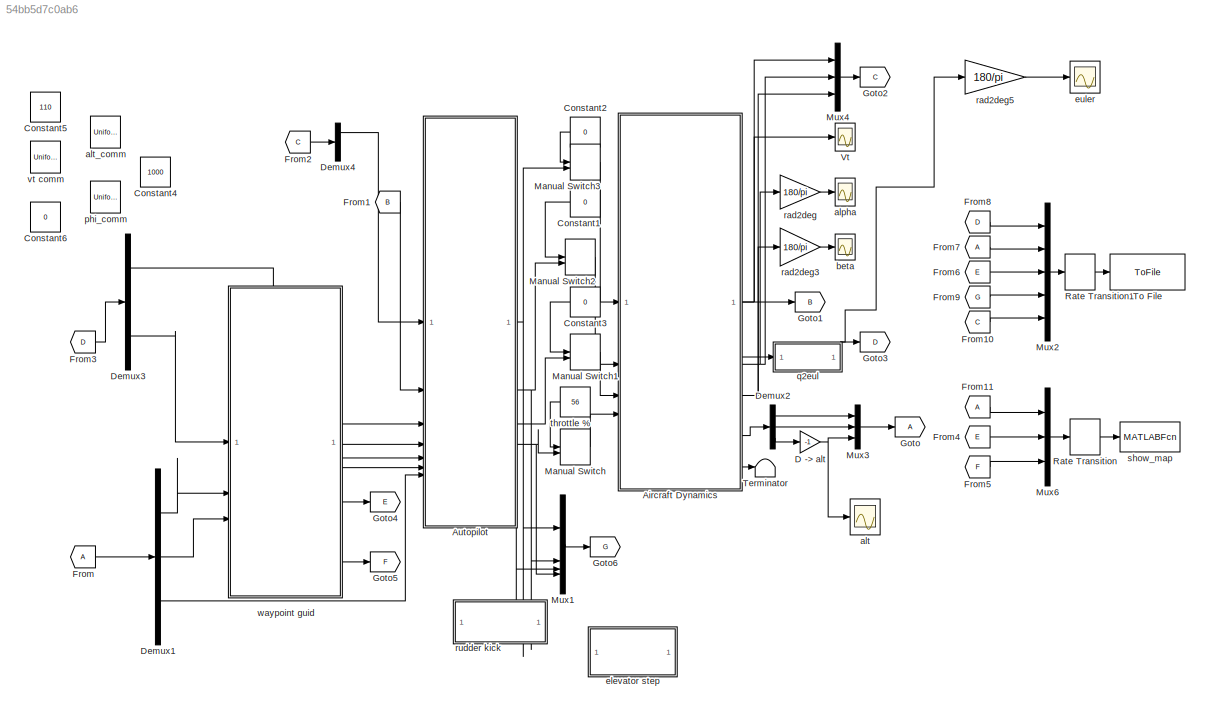
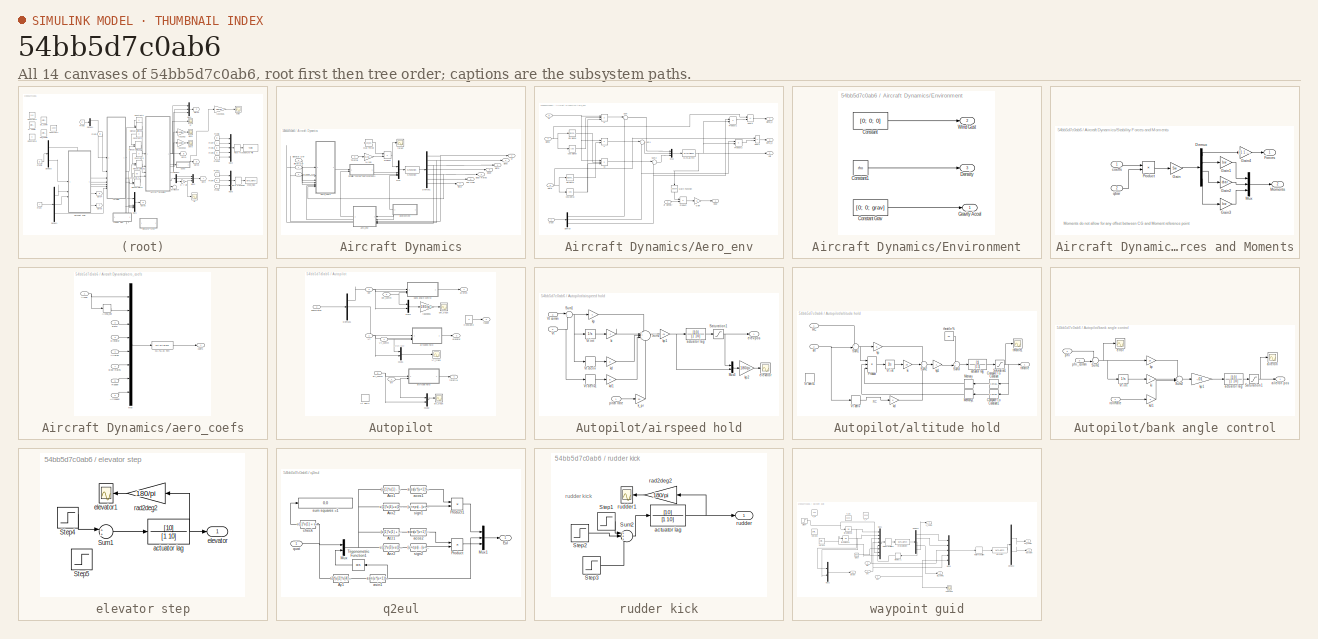
[diagram: thumbnail index - all 14 canvases of the model, root first then tree order]
MODEL slx_54bb5d7c0ab6
KIND model
CONFIG AbsTol = auto
CONFIG EnableMultiTasking = on
CONFIG FixedStep = auto
CONFIG MaxStep = auto
CONFIG MinStep = auto
CONFIG RelTol = 1e-3
CONFIG SampleTimeConstraint = Unconstrained
CONFIG SolverName = ode45
CONFIG StartTime = 0.0
CONFIG StopTime = 500
WORKSPACE source: MATLAB code (in-file)
WORKSPACE code: init_dynamics;
BLOCK [SubSystem] Aircraft Dynamics
BLOCK [Gain] Aircraft Dynamics/%//100
  Gain = 0.01
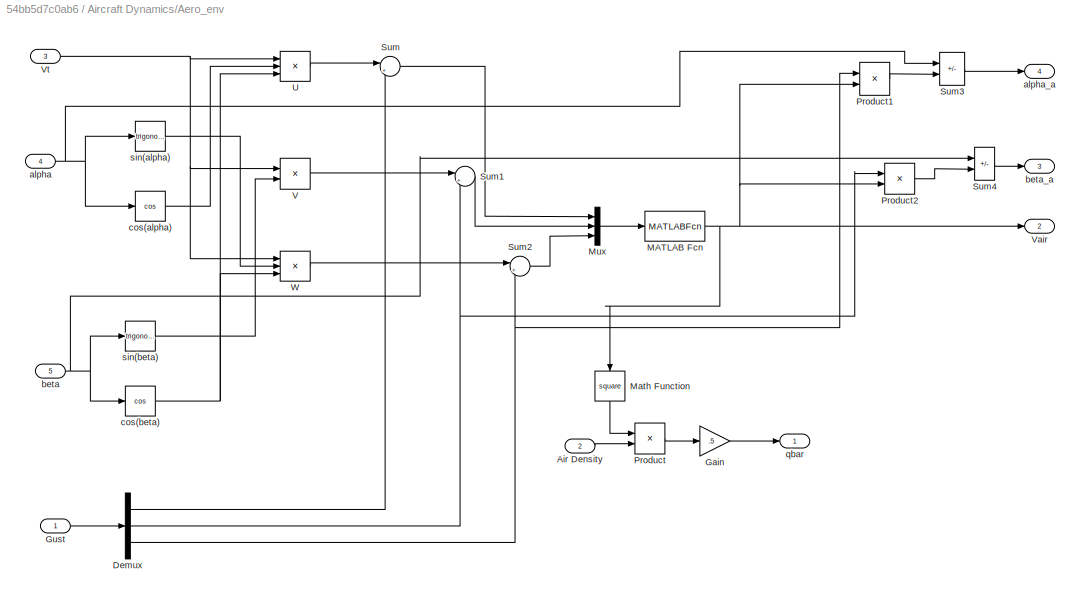
BLOCK [SubSystem] Aircraft Dynamics/Aero_env
BLOCK [Inport] Aircraft Dynamics/Aero_env/Air Density
  Port = 2
BLOCK [Demux] Aircraft Dynamics/Aero_env/Demux
  Outputs = 3
BLOCK [Gain] Aircraft Dynamics/Aero_env/Gain
  Gain = .5
BLOCK [Inport] Aircraft Dynamics/Aero_env/Gust
BLOCK [MATLABFcn] Aircraft Dynamics/Aero_env/MATLAB Fcn
  MATLABFcn = norm(u)
BLOCK [Math] Aircraft Dynamics/Aero_env/Math Function
  NameLocation = left
  Operator = square
  SignedPower = on
BLOCK [Mux] Aircraft Dynamics/Aero_env/Mux
  DisplayOption = bar
  Inputs = 3
BLOCK [Product] Aircraft Dynamics/Aero_env/Product
  RndMeth = Zero
BLOCK [Product] Aircraft Dynamics/Aero_env/Product1
  Inputs = */
  RndMeth = Zero
BLOCK [Product] Aircraft Dynamics/Aero_env/Product2
  Inputs = */
  RndMeth = Zero
BLOCK [Sum] Aircraft Dynamics/Aero_env/Sum
  Inputs = |+-
BLOCK [Sum] Aircraft Dynamics/Aero_env/Sum1
  Inputs = |+-
BLOCK [Sum] Aircraft Dynamics/Aero_env/Sum2
  Inputs = |+-
BLOCK [Sum] Aircraft Dynamics/Aero_env/Sum3
  IconShape = rectangular
  Inputs = +-
BLOCK [Sum] Aircraft Dynamics/Aero_env/Sum4
  IconShape = rectangular
  Inputs = +-
BLOCK [Product] Aircraft Dynamics/Aero_env/U
  Inputs = 3
BLOCK [Product] Aircraft Dynamics/Aero_env/V
BLOCK [Outport] Aircraft Dynamics/Aero_env/Vair
  Port = 2
BLOCK [Inport] Aircraft Dynamics/Aero_env/Vt
  Port = 3
BLOCK [Product] Aircraft Dynamics/Aero_env/W
  Inputs = 3
BLOCK [Inport] Aircraft Dynamics/Aero_env/alpha
  Port = 4
BLOCK [Outport] Aircraft Dynamics/Aero_env/alpha_a
  Port = 4
BLOCK [Inport] Aircraft Dynamics/Aero_env/beta
  Port = 5
BLOCK [Outport] Aircraft Dynamics/Aero_env/beta_a
  Port = 3
BLOCK [Trigonometry] Aircraft Dynamics/Aero_env/cos(alpha)
  Operator = cos
BLOCK [Trigonometry] Aircraft Dynamics/Aero_env/cos(beta)
  Operator = cos
BLOCK [Outport] Aircraft Dynamics/Aero_env/qbar
BLOCK [Trigonometry] Aircraft Dynamics/Aero_env/sin(alpha)
BLOCK [Trigonometry] Aircraft Dynamics/Aero_env/sin(beta)
BLOCK [Inport] Aircraft Dynamics/Aileron Def
BLOCK [Outport] Aircraft Dynamics/Alpha
  Port = 2
BLOCK [Outport] Aircraft Dynamics/Beta
  Port = 3
BLOCK [Outport] Aircraft Dynamics/Body Rates
  Port = 4
BLOCK [Demux] Aircraft Dynamics/Demux1
  Outputs = [1 1 1 4 3 3 1]
BLOCK [Inport] Aircraft Dynamics/Elevator Def
  Port = 3
BLOCK [SubSystem] Aircraft Dynamics/Environment
  NameLocation = top
BLOCK [Constant] Aircraft Dynamics/Environment/Constant
  Value = [0; 0; 0]
BLOCK [Constant] Aircraft Dynamics/Environment/Constant Grav
  Value = [0; 0; grav]
BLOCK [Constant] Aircraft Dynamics/Environment/Constant1
  Value = rho
BLOCK [Outport] Aircraft Dynamics/Environment/Density
  Port = 3
BLOCK [Outport] Aircraft Dynamics/Environment/Gravity Accel
BLOCK [Outport] Aircraft Dynamics/Environment/Wind Gust
  Port = 2
BLOCK [Constant] Aircraft Dynamics/Max Thrust
  Value = [thrust_bx 0 0]
BLOCK [Mux] Aircraft Dynamics/Mux
  DisplayOption = bar
BLOCK [Outport] Aircraft Dynamics/Pos NED
  Port = 6
BLOCK [Product] Aircraft Dynamics/Product
  RndMeth = Zero
BLOCK [Inport] Aircraft Dynamics/Rudder Def
  Port = 2
BLOCK [S-Function] Aircraft Dynamics/S-Function
  EnableBusSupport = off
  FunctionName = aero_dyn
  SFcnIsStateOwnerBlock = off
  SFunctionDeploymentMode = off
BLOCK [SubSystem] Aircraft Dynamics/Stability Forces and Moments
BLOCK [Demux] Aircraft Dynamics/Stability Forces and Moments/Demux
  Outputs = [3 1 1 1]
BLOCK [Outport] Aircraft Dynamics/Stability Forces and Moments/Forces
BLOCK [Gain] Aircraft Dynamics/Stability Forces and Moments/Gain
  Gain = Sw
BLOCK [Gain] Aircraft Dynamics/Stability Forces and Moments/Gain1
  Gain = bw
BLOCK [Gain] Aircraft Dynamics/Stability Forces and Moments/Gain2
  Gain = cbar
BLOCK [Gain] Aircraft Dynamics/Stability Forces and Moments/Gain3
  Gain = bw
BLOCK [Gain] Aircraft Dynamics/Stability Forces and Moments/Gain4
  Gain = [-1 1 -1]
BLOCK [Outport] Aircraft Dynamics/Stability Forces and Moments/Moments
  Port = 2
BLOCK [Mux] Aircraft Dynamics/Stability Forces and Moments/Mux
  DisplayOption = bar
  Inputs = 3
BLOCK [Product] Aircraft Dynamics/Stability Forces and Moments/Product
  RndMeth = Zero
BLOCK [Inport] Aircraft Dynamics/Stability Forces and Moments/coeffs
BLOCK [Inport] Aircraft Dynamics/Stability Forces and Moments/qbar
  Port = 2
BLOCK [Inport] Aircraft Dynamics/Throttle
  Port = 4
BLOCK [Outport] Aircraft Dynamics/Time
  Port = 7
BLOCK [Outport] Aircraft Dynamics/Vt
BLOCK [SubSystem] Aircraft Dynamics/aero_coefs
BLOCK [Inport] Aircraft Dynamics/aero_coefs/Aileron
  Port = 4
BLOCK [Inport] Aircraft Dynamics/aero_coefs/Airspeed
  Port = 6
BLOCK [Inport] Aircraft Dynamics/aero_coefs/Alpha
BLOCK [Derivative] Aircraft Dynamics/aero_coefs/Alpha_dot
BLOCK [Inport] Aircraft Dynamics/aero_coefs/Beta
  Port = 2
BLOCK [Inport] Aircraft Dynamics/aero_coefs/Body Rates
  Port = 7
BLOCK [Inport] Aircraft Dynamics/aero_coefs/Elevator
  Port = 3
BLOCK [MATLABFcn] Aircraft Dynamics/aero_coefs/MATLAB Fcn
  MATLABFcn = get_coeffs
  OutputDimensions = 6
BLOCK [Mux] Aircraft Dynamics/aero_coefs/Mux
  DisplayOption = bar
  Inputs = [1 1 1 1 1 3 1 1]
BLOCK [Inport] Aircraft Dynamics/aero_coefs/Rudder
  Port = 5
BLOCK [Outport] Aircraft Dynamics/aero_coefs/coefs
BLOCK [Outport] Aircraft Dynamics/qb2e
  Port = 5
BLOCK [Scope] Aircraft Dynamics/thrust
  ActiveDisplayYMaximum = 130
  ActiveDisplayYMinimum = 107.5
  DataLoggingDecimateData = on
  DataLoggingDecimation = 1
  DataLoggingLimitDataPoints = on
  DataLoggingSaveFormat = Structure With Time
  DataLoggingVariableName = ScopeData6
  Floating = off
  GraphicalSettings = {"GraphicalSettings":{"LegacySettings":true,"Style":{"Style":{"MinimizeControls":"false","PlotType":"Auto"}}}}
  LayoutDimensionsString = [1 1]
  MultipleDisplayCache = [{"MaxYLimMag":10,"MaxYLimReal":130,"MinYLimMag":0,"MinYLimReal":107.5,"PlotAsMagnitudePhase":false,"ShowGrid":true,"ShowLegend":false,"Title":"%<SignalLabel>","YLabel":""}]
  NumInputPorts = 1
  WasSavedAsWebScope = on
  WindowPosition = [157 493 324 236]
BLOCK [SubSystem] Autopilot
BLOCK [Constant] Autopilot/Constant2
  Value = 0
BLOCK [Demux] Autopilot/Demux1
  Outputs = 3
BLOCK [Mux] Autopilot/Mux1
  DisplayOption = bar
  Inputs = 2
BLOCK [Mux] Autopilot/Mux2
  DisplayOption = bar
  Inputs = 2
BLOCK [Mux] Autopilot/Mux4
  DisplayOption = bar
  Inputs = 2
BLOCK [Inport] Autopilot/Vt
BLOCK [Derivative] Autopilot/Vt deriv
BLOCK [Inport] Autopilot/Vt_comm
  Port = 4
BLOCK [Scope] Autopilot/Vt_track
  ActiveDisplayYMaximum = 138.80367
  ActiveDisplayYMinimum = 72.12715
  DataLoggingDecimateData = on
  DataLoggingDecimation = 1
  DataLoggingLimitDataPoints = on
  DataLoggingSaveFormat = Structure With Time
  DataLoggingVariableName = ScopeData11
  Floating = off
  GraphicalSettings = {"GraphicalSettings":{"LegacySettings":true,"Style":{"AxesScalingProperties":{"ScaleAxesLimitsAtStop":false},"Style":{"AxesColor":"[0 0 0]","ChannelNames":[""],"ColorOrder":"[1 1 0.0666666666666667;0.0745098039215686 0.623529411764706 1;1 0.411764705882353 0.16078431372549;0.392156862745098 0.831372549019608 0.0745098039215686;0.717647058823529 0.274509803921569 1;0.0588235294117647 1 1;1 0.074509...<+427ch>  <repeated x3 — deduplicated; at blocks: Vt_track, alt_track, phi_track>
  MultipleDisplayCache = [{"MaxYLimMag":138.80367,"MaxYLimReal":138.80367,"MinYLimMag":72.12715,"MinYLimReal":72.12715,"PlotAsMagnitudePhase":false,"ShowGrid":true,"ShowLegend":false,"Title":"%<SignalLabel>","YLabel":""}]
  NumInputPorts = 1
  TimeSpan = 60
  WasSavedAsWebScope = on
  WindowPosition = [100 38 660 578]
BLOCK [Outport] Autopilot/aileron
BLOCK [SubSystem] Autopilot/airspeed hold
BLOCK [Mux] Autopilot/airspeed hold/Mux3
  DisplayOption = bar
  Inputs = 2
BLOCK [Saturate] Autopilot/airspeed hold/Saturation1
  LowerLimit = -15*pi/180
  UpperLimit = 15*pi/180
BLOCK [Sum] Autopilot/airspeed hold/Sum1
  Inputs = |+-
  NameLocation = top
  SaturateOnIntegerOverflow = on
BLOCK [Sum] Autopilot/airspeed hold/Sum2
  Inputs = +++-+
  NameLocation = top
  SaturateOnIntegerOverflow = on
BLOCK [Inport] Autopilot/airspeed hold/Vt
  Port = 2
BLOCK [Inport] Autopilot/airspeed hold/Vt comm
  Port = 3
BLOCK [Derivative] Autopilot/airspeed hold/Vt deriv
BLOCK [Derivative] Autopilot/airspeed hold/Vt deriv1
BLOCK [Integrator] Autopilot/airspeed hold/Vt int
BLOCK [TransferFcn] Autopilot/airspeed hold/actuator lag
  Denominator = [1 10]
  Numerator = [10]
BLOCK [Outport] Autopilot/airspeed hold/elev pos
BLOCK [Scope] Autopilot/airspeed hold/elevator
  ActiveDisplayYMaximum = 60
  ActiveDisplayYMinimum = -60
  DataLoggingDecimateData = on
  DataLoggingDecimation = 1
  DataLoggingLimitDataPoints = on
  DataLoggingSaveFormat = Structure With Time
  DataLoggingVariableName = ScopeData3
  Floating = off
  GraphicalSettings = {"GraphicalSettings":{"LegacySettings":true,"Style":{"Style":{"MinimizeControls":"false","PlotType":"Auto"}}}}
  LayoutDimensionsString = [1 1]
  MultipleDisplayCache = [{"MaxYLimMag":10,"MaxYLimReal":60,"MinYLimMag":0,"MinYLimReal":-60,"PlotAsMagnitudePhase":false,"ShowGrid":true,"ShowLegend":false,"Title":"%<SignalLabel>","YLabel":""}]
  NumInputPorts = 1
  TimeSpan = 60
  WasSavedAsWebScope = on
  WindowPosition = [867 403 409 320]
BLOCK [Gain] Autopilot/airspeed hold/k_pr
  Gain = 50
BLOCK [Gain] Autopilot/airspeed hold/kd
  Gain = 0
BLOCK [Gain] Autopilot/airspeed hold/kd1
  Gain = 6
BLOCK [Gain] Autopilot/airspeed hold/ki
  Gain = .2
BLOCK [Gain] Autopilot/airspeed hold/kp
  Gain = 4
BLOCK [Gain] Autopilot/airspeed hold/kp1
  Gain = .01
BLOCK [Gain] Autopilot/airspeed hold/kp2
  Gain = 180/pi
BLOCK [Inport] Autopilot/airspeed hold/pitch rate
BLOCK [Inport] Autopilot/alt
  Port = 7
BLOCK [Inport] Autopilot/alt_comm
  Port = 5
BLOCK [Scope] Autopilot/alt_track
  ActiveDisplayYMaximum = 1127.34568
  ActiveDisplayYMinimum = 430.29492
  DataLoggingDecimateData = on
  DataLoggingDecimation = 1
  DataLoggingLimitDataPoints = on
  DataLoggingSaveFormat = Structure With Time
  DataLoggingVariableName = ScopeData12
  Floating = off
  MultipleDisplayCache = [{"MaxYLimMag":1127.34568,"MaxYLimReal":1127.34568,"MinYLimMag":430.29492,"MinYLimReal":430.29492,"PlotAsMagnitudePhase":false,"ShowGrid":true,"ShowLegend":false,"Title":"%<SignalLabel>","YLabel":""}]
  NumInputPorts = 1
  TimeSpan = 200
  WasSavedAsWebScope = on
  WindowPosition = [663 126 417 304]
BLOCK [SubSystem] Autopilot/altitude hold
BLOCK [Reference] Autopilot/altitude hold/Compare To Constant  REF=simulink/Logic and Bit
Operations/Compare
To Constant
  SourceBlock = simulink/Logic and Bit\nOperations/Compare\nTo Constant
  SourceType = Compare To Constant
BLOCK [Reference] Autopilot/altitude hold/Compare To Constant1  REF=simulink/Logic and Bit
Operations/Compare
To Constant
  SourceBlock = simulink/Logic and Bit\nOperations/Compare\nTo Constant
  SourceType = Compare To Constant
BLOCK [Memory] Autopilot/altitude hold/Memory
BLOCK [Memory] Autopilot/altitude hold/Memory1
BLOCK [Product] Autopilot/altitude hold/Product
  Inputs = 3
  RndMeth = Zero
BLOCK [Inport] Autopilot/altitude hold/RC
BLOCK [Saturate] Autopilot/altitude hold/Saturation1
  LowerLimit = 20
  UpperLimit = 100
BLOCK [Sum] Autopilot/altitude hold/Sum1
  Inputs = +-|
  NameLocation = top
  SaturateOnIntegerOverflow = on
BLOCK [Sum] Autopilot/altitude hold/Sum2
  Inputs = ++-
  NameLocation = top
  SaturateOnIntegerOverflow = on
BLOCK [Sum] Autopilot/altitude hold/Sum3
  Inputs = ++|
  NameLocation = top
  SaturateOnIntegerOverflow = on
BLOCK [Derivative] Autopilot/altitude hold/Vt deriv
BLOCK [Derivative] Autopilot/altitude hold/Vt deriv1
BLOCK [Integrator] Autopilot/altitude hold/Vt int
BLOCK [TransferFcn] Autopilot/altitude hold/actuator lag
  Denominator = [1 1]
BLOCK [Inport] Autopilot/altitude hold/alt
  Port = 2
BLOCK [Gain] Autopilot/altitude hold/kd
BLOCK [Gain] Autopilot/altitude hold/ki
  Gain = .25
BLOCK [Gain] Autopilot/altitude hold/kp
BLOCK [Gain] Autopilot/altitude hold/kp1
  Gain = .1
BLOCK [Outport] Autopilot/altitude hold/throttle
BLOCK [Constant] Autopilot/altitude hold/throttle %
  Value = 56
BLOCK [Scope] Autopilot/altitude hold/throttle1
  ActiveDisplayYMaximum = 46.41471
  ActiveDisplayYMinimum = 17.06503
  DataLoggingDecimateData = on
  DataLoggingDecimation = 1
  DataLoggingLimitDataPoints = on
  DataLoggingSaveFormat = Structure With Time
  DataLoggingVariableName = ScopeData3
  Floating = off
  GraphicalSettings = {"GraphicalSettings":{"LegacySettings":true,"Style":{"AxesScalingProperties":{"ScaleAxesLimitsAtStop":false},"Style":{"AxesColor":"[0 0 0]","ChannelNames":[""],"ColorOrder":"[1 1 0.0666666666666667;0.0745098039215686 0.623529411764706 1;1 0.411764705882353 0.16078431372549;0.392156862745098 0.831372549019608 0.0745098039215686;0.717647058823529 0.274509803921569 1;0.0588235294117647 1 1;1 0.074509...<+424ch>  <repeated x3 — deduplicated; at blocks: throttle1, Vt, alt>
  MultipleDisplayCache = [{"MaxYLimMag":46.41471,"MaxYLimReal":46.41471,"MinYLimMag":17.06503,"MinYLimReal":17.06503,"PlotAsMagnitudePhase":false,"ShowGrid":true,"ShowLegend":false,"Title":"%<SignalLabel>","YLabel":""}]
  NumInputPorts = 1
  TimeSpan = 200
  WasSavedAsWebScope = on
  WindowPosition = [580 193 513 328]
BLOCK [SubSystem] Autopilot/bank angle control
BLOCK [Saturate] Autopilot/bank angle control/Saturation1
  LowerLimit = -.1
  UpperLimit = .1
BLOCK [Sum] Autopilot/bank angle control/Sum1
  Inputs = -+|
  NameLocation = top
  SaturateOnIntegerOverflow = on
BLOCK [Sum] Autopilot/bank angle control/Sum2
  Inputs = ++-
  NameLocation = top
  SaturateOnIntegerOverflow = on
BLOCK [Integrator] Autopilot/bank angle control/Vt int
BLOCK [TransferFcn] Autopilot/bank angle control/actuator lag
  Denominator = [1 10]
  Numerator = [10]
BLOCK [Scope] Autopilot/bank angle control/aileron
  ActiveDisplayYMaximum = 0.099999999999999978
  ActiveDisplayYMinimum = -0.15
  DataLoggingDecimateData = on
  DataLoggingDecimation = 1
  DataLoggingLimitDataPoints = on
  DataLoggingSaveFormat = Structure With Time
  DataLoggingVariableName = ScopeData3
  Floating = off
  GraphicalSettings = {"GraphicalSettings":{"LegacySettings":true,"Style":{"Style":{"MinimizeControls":"false","PlotType":"Auto"}}}}
  LayoutDimensionsString = [1 1]
  MultipleDisplayCache = [{"MaxYLimMag":10,"MaxYLimReal":0.099999999999999978,"MinYLimMag":0,"MinYLimReal":-0.15,"PlotAsMagnitudePhase":false,"ShowGrid":true,"ShowLegend":false,"Title":"%<SignalLabel>","YLabel":""}]
  NumInputPorts = 1
  TimeSpan = 50
  WasSavedAsWebScope = on
  WindowPosition = [927 70 324 236]
BLOCK [Outport] Autopilot/bank angle control/aileron pos
BLOCK [Scope] Autopilot/bank angle control/error
  ActiveDisplayYMaximum = 0.099999999999999978
  ActiveDisplayYMinimum = -0.15
  DataLoggingDecimateData = on
  DataLoggingDecimation = 1
  DataLoggingLimitDataPoints = on
  DataLoggingSaveFormat = Structure With Time
  DataLoggingVariableName = ScopeData10
  Floating = off
  GraphicalSettings = {"GraphicalSettings":{"LegacySettings":true,"Style":{"Style":{"MinimizeControls":"false","PlotType":"Auto"}}}}
  LayoutDimensionsString = [1 1]
  MultipleDisplayCache = [{"MaxYLimMag":10,"MaxYLimReal":0.099999999999999978,"MinYLimMag":0,"MinYLimReal":-0.15,"PlotAsMagnitudePhase":false,"ShowGrid":true,"ShowLegend":false,"Title":"%<SignalLabel>","YLabel":""}]
  NumInputPorts = 1
  TimeSpan = 50
  WasSavedAsWebScope = on
  WindowPosition = [384 28 324 236]
BLOCK [Gain] Autopilot/bank angle control/kd1
  Gain = .2
BLOCK [Gain] Autopilot/bank angle control/ki
BLOCK [Gain] Autopilot/bank angle control/kp
  Gain = 25
BLOCK [Gain] Autopilot/bank angle control/kp1
  Gain = -.01
BLOCK [Inport] Autopilot/bank angle control/phi
  Port = 2
BLOCK [Inport] Autopilot/bank angle control/phi_comm
  Port = 3
BLOCK [Inport] Autopilot/bank angle control/rollRate
BLOCK [Inport] Autopilot/bodyRates
  Port = 2
BLOCK [Outport] Autopilot/elevator
  Port = 3
BLOCK [Inport] Autopilot/phi
  Port = 3
BLOCK [Inport] Autopilot/phi_comm
  Port = 6
BLOCK [Scope] Autopilot/phi_track
  ActiveDisplayYMaximum = 36.45791
  ActiveDisplayYMinimum = -45.82357
  DataLoggingDecimateData = on
  DataLoggingDecimation = 1
  DataLoggingLimitDataPoints = on
  DataLoggingSaveFormat = Structure With Time
  DataLoggingVariableName = ScopeData5
  Floating = off
  MultipleDisplayCache = [{"MaxYLimMag":45.82357,"MaxYLimReal":36.45791,"MinYLimMag":0,"MinYLimReal":-45.82357,"PlotAsMagnitudePhase":false,"ShowGrid":true,"ShowLegend":false,"Title":"%<SignalLabel>","YLabel":""}]
  NumInputPorts = 1
  TimeSpan = 200
  WasSavedAsWebScope = on
  WindowPosition = [616 39 400 297]
BLOCK [Gain] Autopilot/rad2deg1
  Gain = 180/pi
BLOCK [Outport] Autopilot/rudder
  Port = 2
BLOCK [Outport] Autopilot/throttle
  Port = 4
BLOCK [Constant] Constant1
  Value = 0
BLOCK [Constant] Constant2
  Value = 0
BLOCK [Constant] Constant3
  Value = 0
BLOCK [Constant] Constant4
  Value = 1000
BLOCK [Constant] Constant5
  Value = 110
BLOCK [Constant] Constant6
  Value = 0
BLOCK [Gain] D -> alt
  Gain = -1
BLOCK [Demux] Demux1
  Outputs = 3
BLOCK [Demux] Demux2
  Outputs = 3
BLOCK [Demux] Demux3
  Outputs = 3
BLOCK [Demux] Demux4
  Outputs = 3
BLOCK [From] From
  CloseFcn = tagdialog Close
BLOCK [From] From1
  CloseFcn = tagdialog Close
  GotoTag = B
BLOCK [From] From10
  CloseFcn = tagdialog Close
  GotoTag = C
BLOCK [From] From11
  CloseFcn = tagdialog Close
BLOCK [From] From2
  CloseFcn = tagdialog Close
  GotoTag = C
BLOCK [From] From3
  CloseFcn = tagdialog Close
  GotoTag = D
BLOCK [From] From4
  CloseFcn = tagdialog Close
  GotoTag = E
BLOCK [From] From5
  CloseFcn = tagdialog Close
  GotoTag = F
BLOCK [From] From6
  CloseFcn = tagdialog Close
  GotoTag = E
BLOCK [From] From7
  CloseFcn = tagdialog Close
BLOCK [From] From8
  CloseFcn = tagdialog Close
  GotoTag = D
BLOCK [From] From9
  CloseFcn = tagdialog Close
  GotoTag = G
BLOCK [Goto] Goto
BLOCK [Goto] Goto1
  GotoTag = B
BLOCK [Goto] Goto2
  GotoTag = C
BLOCK [Goto] Goto3
  GotoTag = D
BLOCK [Goto] Goto4
  GotoTag = E
BLOCK [Goto] Goto5
  GotoTag = F
BLOCK [Goto] Goto6
  GotoTag = G
BLOCK [ManualSwitch] Manual Switch
  CurrentSetting = 0
BLOCK [ManualSwitch] Manual Switch1
  CurrentSetting = 0
BLOCK [ManualSwitch] Manual Switch2
  CurrentSetting = 0
BLOCK [ManualSwitch] Manual Switch3
  CurrentSetting = 0
BLOCK [Mux] Mux1
  DisplayOption = bar
BLOCK [Mux] Mux2
  DisplayOption = bar
  Inputs = 5
BLOCK [Mux] Mux3
  DisplayOption = bar
  Inputs = 3
BLOCK [Mux] Mux4
  DisplayOption = bar
  Inputs = 3
BLOCK [Mux] Mux6
  DisplayOption = bar
  Inputs = [3 2 2]
BLOCK [RateTransition] Rate Transition
  OutPortSampleTime = 4
BLOCK [RateTransition] Rate Transition1
  OutPortSampleTime = .1
BLOCK [Terminator] Terminator
BLOCK [ToFile] To File
  Filename = dataRecorder.mat
  MatrixName = recordedData
BLOCK [Scope] Vt
  ActiveDisplayYMaximum = 138.43997
  ActiveDisplayYMinimum = 70.82969
  DataLoggingDecimateData = on
  DataLoggingDecimation = 1
  DataLoggingLimitDataPoints = on
  DataLoggingSaveFormat = Structure With Time
  DataLoggingVariableName = ScopeData8
  Floating = off
  MultipleDisplayCache = [{"MaxYLimMag":138.43997,"MaxYLimReal":138.43997,"MinYLimMag":70.82969,"MinYLimReal":70.82969,"PlotAsMagnitudePhase":false,"ShowGrid":true,"ShowLegend":false,"Title":"%<SignalLabel>","YLabel":""}]
  NumInputPorts = 1
  TimeSpan = 50
  WasSavedAsWebScope = on
  WindowPosition = [328 113 625 495]
BLOCK [Scope] alpha
  ActiveDisplayYMaximum = 12
  ActiveDisplayYMinimum = 0
  DataLoggingDecimateData = on
  DataLoggingDecimation = 1
  DataLoggingLimitDataPoints = on
  DataLoggingSaveFormat = Structure With Time
  DataLoggingVariableName = ScopeData1
  Floating = off
  GraphicalSettings = {"GraphicalSettings":{"LegacySettings":true,"Style":{"Style":{"MinimizeControls":"false","PlotType":"Auto"}}}}
  LayoutDimensionsString = [1 1]
  MultipleDisplayCache = [{"MaxYLimMag":10,"MaxYLimReal":12,"MinYLimMag":0,"MinYLimReal":0,"PlotAsMagnitudePhase":false,"ShowGrid":true,"ShowLegend":false,"Title":"%<SignalLabel>","YLabel":""}]
  NumInputPorts = 1
  TimeSpan = 50
  WasSavedAsWebScope = on
  WindowPosition = [692 110 329 249]
BLOCK [Scope] alt
  ActiveDisplayYMaximum = 1261.76881
  ActiveDisplayYMinimum = 293.69239
  DataLoggingDecimateData = on
  DataLoggingDecimation = 1
  DataLoggingLimitDataPoints = on
  DataLoggingSaveFormat = Structure With Time
  DataLoggingVariableName = ScopeData14
  Floating = off
  MultipleDisplayCache = [{"MaxYLimMag":1261.76881,"MaxYLimReal":1261.76881,"MinYLimMag":293.69239,"MinYLimReal":293.69239,"PlotAsMagnitudePhase":false,"ShowGrid":true,"ShowLegend":false,"Title":"%<SignalLabel>","YLabel":""}]
  NumInputPorts = 1
  TimeSpan = 50
  WasSavedAsWebScope = on
  WindowPosition = [319 191 642 418]
BLOCK [UniformRandomNumber] alt_comm
  Maximum = 1500
  Minimum = 1000
  SampleTime = 50
  Seed = 2
BLOCK [Scope] beta
  ActiveDisplayYMaximum = 3
  ActiveDisplayYMinimum = -4
  DataLoggingDecimateData = on
  DataLoggingDecimation = 1
  DataLoggingLimitDataPoints = on
  DataLoggingSaveFormat = Structure With Time
  DataLoggingVariableName = ScopeData4
  Floating = off
  GraphicalSettings = {"GraphicalSettings":{"LegacySettings":true,"Style":{"AxesScalingProperties":{"ScaleAxesLimitsAtStop":false},"Style":{"AxesColor":"[0 0 0]","ChannelNames":[""],"ColorOrder":"[1 1 0.0666666666666667;0.0745098039215686 0.623529411764706 1;1 0.411764705882353 0.16078431372549;0.392156862745098 0.831372549019608 0.0745098039215686;0.717647058823529 0.274509803921569 1;0.0588235294117647 1 1;1 0.074509...<+399ch>
  MultipleDisplayCache = [{"MaxYLimMag":10,"MaxYLimReal":3,"MinYLimMag":0,"MinYLimReal":-4,"PlotAsMagnitudePhase":false,"ShowGrid":true,"ShowLegend":false,"Title":"%<SignalLabel>","YLabel":""}]
  NumInputPorts = 1
  TimeSpan = 200
  WasSavedAsWebScope = on
  WindowPosition = [921 1 443 331]
BLOCK [SubSystem] elevator step
BLOCK [Step] elevator step/Step4
  After = -2*pi/180
  SampleTime = 0
  Time = 5
BLOCK [Step] elevator step/Step5
  After = 10*pi/180
  SampleTime = 0
  Time = 10
BLOCK [Sum] elevator step/Sum1
  NameLocation = top
  SaturateOnIntegerOverflow = on
BLOCK [TransferFcn] elevator step/actuator lag
  Denominator = [1 10]
  Numerator = [10]
BLOCK [Outport] elevator step/elevator
BLOCK [Scope] elevator step/elevator1
  ActiveDisplayYMaximum = 12
  ActiveDisplayYMinimum = 0
  DataLoggingDecimateData = on
  DataLoggingDecimation = 1
  DataLoggingLimitDataPoints = on
  DataLoggingSaveFormat = Structure With Time
  DataLoggingVariableName = ScopeData13
  Floating = off
  GraphicalSettings = {"GraphicalSettings":{"LegacySettings":true,"Style":{"Style":{"MinimizeControls":"false","PlotType":"Auto"}}}}
  LayoutDimensionsString = [1 1]
  MultipleDisplayCache = [{"MaxYLimMag":10,"MaxYLimReal":12,"MinYLimMag":0,"MinYLimReal":0,"PlotAsMagnitudePhase":false,"ShowGrid":true,"ShowLegend":false,"Title":"%<SignalLabel>","YLabel":""}]
  NumInputPorts = 1
  TimeSpan = 50
  WasSavedAsWebScope = on
  WindowPosition = [705 35 436 324]
BLOCK [Gain] elevator step/rad2deg2
  Gain = 180/pi
BLOCK [Scope] euler
  ActiveDisplayYMaximum = 43.651481410625
  ActiveDisplayYMinimum = -7.97439141062501
  DataLoggingDecimateData = on
  DataLoggingDecimation = 1
  DataLoggingLimitDataPoints = on
  DataLoggingSaveFormat = Structure With Time
  DataLoggingVariableName = ScopeData7
  Floating = off
  GraphicalSettings = {"AxesScalingProperties":{"AlignXAxis":"Center","AlignYAxis":"Center","AutoScaleXAxisLimits":false,"AxesScaling":"Manual","AxesScalingNumUpdates":10,"ExpandOnly":true,"ScaleAxesLimitsAtStop":false,"XAxisDataRange":100,"YAxisDataRange":80},"DisplayProperties":{"ColorOrder":["auto","auto","auto","auto","auto","auto","auto","auto","auto","auto","auto","auto","auto","auto","auto","auto","auto","auto",...<+2196ch>
  MultipleDisplayCache = [{"MaxYLimMag":40.13673,"MaxYLimReal":43.651481410625,"MinYLimMag":0,"MinYLimReal":-7.97439141062501,"PlotAsMagnitudePhase":false,"ShowGrid":true,"ShowLegend":false,"Title":"%<SignalLabel>","YLabel":""}]
  NumInputPorts = 1
  ScopeFrameLocation = window
  TimeSpan = 50
  WasSavedAsWebScope = on
  WindowPosition = [645.000000,193.000000,399.000000,339.000000,]
BLOCK [UniformRandomNumber] phi_comm
  Maximum = .5
  Minimum = -.5
  SampleTime = 20
  Seed = 3
BLOCK [SubSystem] q2eul
BLOCK [Fcn] q2eul/Axx1
  Expr = (u(1)*u(1) - u(2)*u(2) - u(3)*u(3) + u(4)*u(4))/u(5)
BLOCK [Fcn] q2eul/Axx2
  Expr = u(3)*u(4)+u(1)*u(2)
BLOCK [Fcn] q2eul/Ay1
  Expr = -2*(u[2]*u[4]-u[1]*u[3])
BLOCK [Fcn] q2eul/Azz1
  Expr = (u(1)*u(1) + u(2)*u(2) - u(3)*u(3) - u(4)*u(4))/u(5)
BLOCK [Fcn] q2eul/Azz2
  Expr = u(2)*u(3)+u(1)*u(4)
BLOCK [Outport] q2eul/Eul
  InitialOutput = 0
BLOCK [Mux] q2eul/Mux
  DisplayOption = bar
  Inputs = 2
BLOCK [Mux] q2eul/Mux1
  DisplayOption = bar
  Inputs = 3
BLOCK [Product] q2eul/Product
  InputSameDT = on
  OutDataTypeStr = Inherit: Same as first input
  RndMeth = Zero
  SaturateOnIntegerOverflow = on
BLOCK [Product] q2eul/Product1
  InputSameDT = on
  OutDataTypeStr = Inherit: Same as first input
  RndMeth = Zero
  SaturateOnIntegerOverflow = on
BLOCK [Trigonometry] q2eul/Trigonometric Function1
  Operator = cos
BLOCK [Fcn] q2eul/acos1
  Expr = acos(u*(u<1)*(u>-1)+(u>=1)-(u<=-1))
BLOCK [Fcn] q2eul/acos2
  Expr = acos(u*(u<1)*(u>-1)+(u>=1)-(u<=-1))
BLOCK [Fcn] q2eul/asin1 
  Expr = asin(u*(u<1)*(u>-1)+(u>=1)-(u<=-1))
BLOCK [Fcn] q2eul/check
  Expr = u(1)*u(1) + u(2)*u(2) + u(3)*u(3) + u(4)*u(4)
BLOCK [Inport] q2eul/quat
BLOCK [Fcn] q2eul/sign1
  Expr = (u>eps) - (u<-eps)
BLOCK [Fcn] q2eul/sign2
  Expr = (u>eps) - (u<-eps)
BLOCK [Display] q2eul/sum squares =1
  Decimation = 1
  Format = long_e
  NameLocation = top
BLOCK [Gain] rad2deg
  Gain = 180/pi
BLOCK [Gain] rad2deg3
  Gain = 180/pi
BLOCK [Gain] rad2deg5
  Gain = 180/pi
BLOCK [SubSystem] rudder kick
BLOCK [Step] rudder kick/Step1
  After = 10*pi/180
  SampleTime = 0
  Time = 10
BLOCK [Step] rudder kick/Step2
  After = -20*pi/180
  SampleTime = 0
  Time = 10.5
BLOCK [Step] rudder kick/Step3
  After = 10*pi/180
  SampleTime = 0
  Time = 11
BLOCK [Sum] rudder kick/Sum2
  Inputs = +++
  NameLocation = top
  SaturateOnIntegerOverflow = on
BLOCK [TransferFcn] rudder kick/actuator lag
  Denominator = [1 10]
  Numerator = [10]
BLOCK [Gain] rudder kick/rad2deg2
  Gain = 180/pi
BLOCK [Outport] rudder kick/rudder
BLOCK [Scope] rudder kick/rudder1
  ActiveDisplayYMaximum = 12
  ActiveDisplayYMinimum = 0
  DataLoggingDecimateData = on
  DataLoggingDecimation = 1
  DataLoggingLimitDataPoints = on
  DataLoggingSaveFormat = Structure With Time
  DataLoggingVariableName = ScopeData2
  Floating = off
  GraphicalSettings = {"GraphicalSettings":{"LegacySettings":true,"Style":{"Style":{"MinimizeControls":"false","PlotType":"Auto"}}}}
  LayoutDimensionsString = [1 1]
  MultipleDisplayCache = [{"MaxYLimMag":10,"MaxYLimReal":12,"MinYLimMag":0,"MinYLimReal":0,"PlotAsMagnitudePhase":false,"ShowGrid":true,"ShowLegend":false,"Title":"%<SignalLabel>","YLabel":""}]
  NumInputPorts = 1
  TimeSpan = 50
  WasSavedAsWebScope = on
  WindowPosition = [267 317 436 324]
BLOCK [MATLABFcn] show_map
  MATLABFcn = show_map
  OutputDimensions = 0
BLOCK [Constant] throttle %
  Value = 56
BLOCK [UniformRandomNumber] vt comm
  Maximum = 130
  Minimum = 100
  SampleTime = 20
  Seed = 2
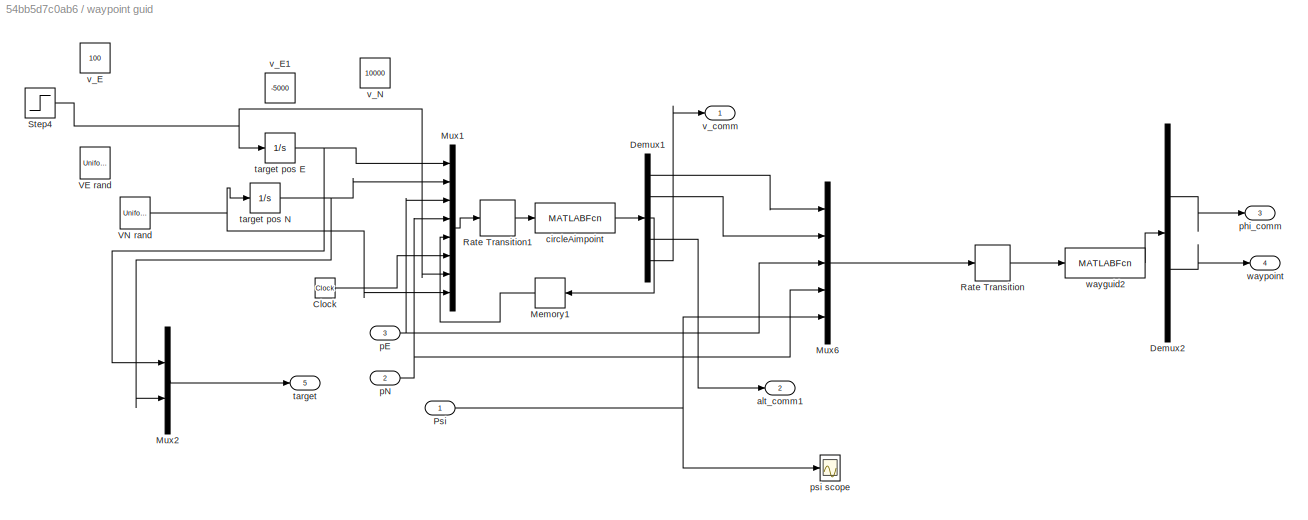
BLOCK [SubSystem] waypoint guid
BLOCK [Clock] waypoint guid/Clock
BLOCK [Demux] waypoint guid/Demux1
  Outputs = 5
BLOCK [Demux] waypoint guid/Demux2
  Outputs = [1 2]
BLOCK [Memory] waypoint guid/Memory1
  InitialCondition = 1
BLOCK [Mux] waypoint guid/Mux1
  DisplayOption = bar
  Inputs = 8
BLOCK [Mux] waypoint guid/Mux2
  DisplayOption = bar
  Inputs = 2
BLOCK [Mux] waypoint guid/Mux6
  DisplayOption = bar
  Inputs = 5
BLOCK [Inport] waypoint guid/Psi
BLOCK [RateTransition] waypoint guid/Rate Transition
  OutPortSampleTime = 0.5
BLOCK [RateTransition] waypoint guid/Rate Transition1
  OutPortSampleTime = 0.5
BLOCK [Step] waypoint guid/Step4
  After = 0
  Before = 100
  SampleTime = 0
  Time = 200
BLOCK [UniformRandomNumber] waypoint guid/VE rand
  Maximum = 60
  Minimum = -60
  SampleTime = 20
  Seed = sum(clock)+2
BLOCK [UniformRandomNumber] waypoint guid/VN rand
  Maximum = 40
  Minimum = -40
  SampleTime = 30
  Seed = sum(clock)+3
BLOCK [Outport] waypoint guid/alt_comm1
  Port = 2
BLOCK [MATLABFcn] waypoint guid/circleAimpoint
  MATLABFcn = circleAimpoint
  OutputDimensions = 5
  SampleTime = .5
BLOCK [Inport] waypoint guid/pE
  Port = 3
BLOCK [Inport] waypoint guid/pN
  Port = 2
BLOCK [Outport] waypoint guid/phi_comm
  Port = 3
BLOCK [Scope] waypoint guid/psi scope
  ActiveDisplayYMaximum = 2.11232
  ActiveDisplayYMinimum = -2.35122
  DataLoggingDecimateData = on
  DataLoggingDecimation = 1
  DataLoggingLimitDataPoints = on
  DataLoggingSaveFormat = Structure With Time
  DataLoggingVariableName = ScopeData15
  Floating = off
  GraphicalSettings = {"GraphicalSettings":{"LegacySettings":true,"Style":{"AxesScalingProperties":{"ScaleAxesLimitsAtStop":false},"Style":{"AxesColor":"[0 0 0]","ChannelNames":[""],"ColorOrder":"[1 1 0.0666666666666667;0.0745098039215686 0.623529411764706 1;1 0.411764705882353 0.16078431372549;0.392156862745098 0.831372549019608 0.0745098039215686;0.717647058823529 0.274509803921569 1;0.0588235294117647 1 1;1 0.074509...<+438ch>
  MultipleDisplayCache = [{"MaxYLimMag":2.35122,"MaxYLimReal":2.11232,"MinYLimMag":0,"MinYLimReal":-2.35122,"PlotAsMagnitudePhase":false,"ShowGrid":true,"ShowLegend":false,"Title":"%<SignalLabel>","YLabel":""}]
  NumInputPorts = 1
  TimeSpan = 200
  WasSavedAsWebScope = on
  WindowPosition = [754 83 443 331]
BLOCK [Outport] waypoint guid/target
  Port = 5
BLOCK [Integrator] waypoint guid/target pos E
  InitialCondition = -5000
BLOCK [Integrator] waypoint guid/target pos N
  InitialCondition = 10000
BLOCK [Constant] waypoint guid/v_E
  NameLocation = top
  Value = 100
BLOCK [Constant] waypoint guid/v_E1
  NameLocation = top
  Value = -5000
BLOCK [Constant] waypoint guid/v_N
  Value = 10000
BLOCK [Outport] waypoint guid/v_comm
BLOCK [MATLABFcn] waypoint guid/wayguid2
  MATLABFcn = wayguid2
  OutputDimensions = 3
  SampleTime = .5
BLOCK [Outport] waypoint guid/waypoint
  Port = 4
ANNOTATION Aircraft Dynamics/Stability Forces and Moments: Moments do not allow for any offset between CG and Moment reference point
ANNOTATION Autopilot: pitch rate
ANNOTATION Autopilot/altitude hold: RC
ANNOTATION rudder kick: rudder kick
LINE Aircraft Dynamics/%//100:1 -> Aircraft Dynamics/Product:2
LINE Aircraft Dynamics/Aero_env/Air Density:1 -> Aircraft Dynamics/Aero_env/Product:2
LINE Aircraft Dynamics/Aero_env/Demux:1 -> Aircraft Dynamics/Aero_env/Sum:2
NET Aircraft Dynamics/Aero_env/Demux:2 -> Aircraft Dynamics/Aero_env/Product2:1, Aircraft Dynamics/Aero_env/Sum1:2
NET Aircraft Dynamics/Aero_env/Demux:3 -> Aircraft Dynamics/Aero_env/Product1:1, Aircraft Dynamics/Aero_env/Sum2:2
LINE Aircraft Dynamics/Aero_env/Gain:1 -> Aircraft Dynamics/Aero_env/qbar:1
LINE Aircraft Dynamics/Aero_env/Gust:1 -> Aircraft Dynamics/Aero_env/Demux:1
NET Aircraft Dynamics/Aero_env/MATLAB Fcn:1 -> Aircraft Dynamics/Aero_env/Math Function:1, Aircraft Dynamics/Aero_env/Product1:2, Aircraft Dynamics/Aero_env/Product2:2, Aircraft Dynamics/Aero_env/Vair:1
LINE Aircraft Dynamics/Aero_env/Math Function:1 -> Aircraft Dynamics/Aero_env/Product:1
LINE Aircraft Dynamics/Aero_env/Mux:1 -> Aircraft Dynamics/Aero_env/MATLAB Fcn:1
LINE Aircraft Dynamics/Aero_env/Product1:1 -> Aircraft Dynamics/Aero_env/Sum3:2
LINE Aircraft Dynamics/Aero_env/Product2:1 -> Aircraft Dynamics/Aero_env/Sum4:2
LINE Aircraft Dynamics/Aero_env/Product:1 -> Aircraft Dynamics/Aero_env/Gain:1
LINE Aircraft Dynamics/Aero_env/Sum1:1 -> Aircraft Dynamics/Aero_env/Mux:2
LINE Aircraft Dynamics/Aero_env/Sum2:1 -> Aircraft Dynamics/Aero_env/Mux:3
LINE Aircraft Dynamics/Aero_env/Sum3:1 -> Aircraft Dynamics/Aero_env/alpha_a:1
LINE Aircraft Dynamics/Aero_env/Sum4:1 -> Aircraft Dynamics/Aero_env/beta_a:1
LINE Aircraft Dynamics/Aero_env/Sum:1 -> Aircraft Dynamics/Aero_env/Mux:1
LINE Aircraft Dynamics/Aero_env/U:1 -> Aircraft Dynamics/Aero_env/Sum:1
LINE Aircraft Dynamics/Aero_env/V:1 -> Aircraft Dynamics/Aero_env/Sum1:1
NET Aircraft Dynamics/Aero_env/Vt:1 -> Aircraft Dynamics/Aero_env/U:1, Aircraft Dynamics/Aero_env/V:1, Aircraft Dynamics/Aero_env/W:1
LINE Aircraft Dynamics/Aero_env/W:1 -> Aircraft Dynamics/Aero_env/Sum2:1
NET Aircraft Dynamics/Aero_env/alpha:1 -> Aircraft Dynamics/Aero_env/Sum3:1, Aircraft Dynamics/Aero_env/cos(alpha):1, Aircraft Dynamics/Aero_env/sin(alpha):1
NET Aircraft Dynamics/Aero_env/beta:1 -> Aircraft Dynamics/Aero_env/Sum4:1, Aircraft Dynamics/Aero_env/cos(beta):1, Aircraft Dynamics/Aero_env/sin(beta):1
LINE Aircraft Dynamics/Aero_env/cos(alpha):1 -> Aircraft Dynamics/Aero_env/U:2
NET Aircraft Dynamics/Aero_env/cos(beta):1 -> Aircraft Dynamics/Aero_env/U:3, Aircraft Dynamics/Aero_env/W:3
LINE Aircraft Dynamics/Aero_env/sin(alpha):1 -> Aircraft Dynamics/Aero_env/W:2
LINE Aircraft Dynamics/Aero_env/sin(beta):1 -> Aircraft Dynamics/Aero_env/V:2
LINE Aircraft Dynamics/Aero_env:1 -> Aircraft Dynamics/Stability Forces and Moments:2
LINE Aircraft Dynamics/Aero_env:2 -> Aircraft Dynamics/aero_coefs:6
LINE Aircraft Dynamics/Aero_env:3 -> Aircraft Dynamics/aero_coefs:2
LINE Aircraft Dynamics/Aero_env:4 -> Aircraft Dynamics/aero_coefs:1
LINE Aircraft Dynamics/Aileron Def:1 -> Aircraft Dynamics/aero_coefs:4
NET Aircraft Dynamics/Demux1:1 -> Aircraft Dynamics/Aero_env:3, Aircraft Dynamics/Vt:1
NET Aircraft Dynamics/Demux1:2 -> Aircraft Dynamics/Aero_env:4, Aircraft Dynamics/Alpha:1
NET Aircraft Dynamics/Demux1:3 -> Aircraft Dynamics/Aero_env:5, Aircraft Dynamics/Beta:1
LINE Aircraft Dynamics/Demux1:4 -> Aircraft Dynamics/qb2e:1
NET Aircraft Dynamics/Demux1:5 -> Aircraft Dynamics/Body Rates:1, Aircraft Dynamics/aero_coefs:7
LINE Aircraft Dynamics/Demux1:6 -> Aircraft Dynamics/Pos NED:1
LINE Aircraft Dynamics/Demux1:7 -> Aircraft Dynamics/Time:1
LINE Aircraft Dynamics/Elevator Def:1 -> Aircraft Dynamics/aero_coefs:3
LINE Aircraft Dynamics/Environment/Constant Grav:1 -> Aircraft Dynamics/Environment/Gravity Accel:1
LINE Aircraft Dynamics/Environment/Constant1:1 -> Aircraft Dynamics/Environment/Density:1
LINE Aircraft Dynamics/Environment/Constant:1 -> Aircraft Dynamics/Environment/Wind Gust:1
LINE Aircraft Dynamics/Environment:1 -> Aircraft Dynamics/Mux:4
LINE Aircraft Dynamics/Environment:2 -> Aircraft Dynamics/Aero_env:1
LINE Aircraft Dynamics/Environment:3 -> Aircraft Dynamics/Aero_env:2
LINE Aircraft Dynamics/Max Thrust:1 -> Aircraft Dynamics/Product:1
LINE Aircraft Dynamics/Mux:1 -> Aircraft Dynamics/S-Function:1
NET Aircraft Dynamics/Product:1 -> Aircraft Dynamics/Mux:1, Aircraft Dynamics/thrust:1
LINE Aircraft Dynamics/Rudder Def:1 -> Aircraft Dynamics/aero_coefs:5
LINE Aircraft Dynamics/S-Function:1 -> Aircraft Dynamics/Demux1:1
LINE Aircraft Dynamics/Stability Forces and Moments/Demux:1 -> Aircraft Dynamics/Stability Forces and Moments/Gain4:1
LINE Aircraft Dynamics/Stability Forces and Moments/Demux:2 -> Aircraft Dynamics/Stability Forces and Moments/Gain1:1
LINE Aircraft Dynamics/Stability Forces and Moments/Demux:3 -> Aircraft Dynamics/Stability Forces and Moments/Gain2:1
LINE Aircraft Dynamics/Stability Forces and Moments/Demux:4 -> Aircraft Dynamics/Stability Forces and Moments/Gain3:1
LINE Aircraft Dynamics/Stability Forces and Moments/Gain1:1 -> Aircraft Dynamics/Stability Forces and Moments/Mux:1
LINE Aircraft Dynamics/Stability Forces and Moments/Gain2:1 -> Aircraft Dynamics/Stability Forces and Moments/Mux:2
LINE Aircraft Dynamics/Stability Forces and Moments/Gain3:1 -> Aircraft Dynamics/Stability Forces and Moments/Mux:3
LINE Aircraft Dynamics/Stability Forces and Moments/Gain4:1 -> Aircraft Dynamics/Stability Forces and Moments/Forces:1
LINE Aircraft Dynamics/Stability Forces and Moments/Gain:1 -> Aircraft Dynamics/Stability Forces and Moments/Demux:1
LINE Aircraft Dynamics/Stability Forces and Moments/Mux:1 -> Aircraft Dynamics/Stability Forces and Moments/Moments:1
LINE Aircraft Dynamics/Stability Forces and Moments/Product:1 -> Aircraft Dynamics/Stability Forces and Moments/Gain:1
LINE Aircraft Dynamics/Stability Forces and Moments/coeffs:1 -> Aircraft Dynamics/Stability Forces and Moments/Product:1
LINE Aircraft Dynamics/Stability Forces and Moments/qbar:1 -> Aircraft Dynamics/Stability Forces and Moments/Product:2
LINE Aircraft Dynamics/Stability Forces and Moments:1 -> Aircraft Dynamics/Mux:2
LINE Aircraft Dynamics/Stability Forces and Moments:2 -> Aircraft Dynamics/Mux:3
LINE Aircraft Dynamics/Throttle:1 -> Aircraft Dynamics/%//100:1
LINE Aircraft Dynamics/aero_coefs/Aileron:1 -> Aircraft Dynamics/aero_coefs/Mux:5
LINE Aircraft Dynamics/aero_coefs/Airspeed:1 -> Aircraft Dynamics/aero_coefs/Mux:8
NET Aircraft Dynamics/aero_coefs/Alpha:1 -> Aircraft Dynamics/aero_coefs/Alpha_dot:1, Aircraft Dynamics/aero_coefs/Mux:1
LINE Aircraft Dynamics/aero_coefs/Alpha_dot:1 -> Aircraft Dynamics/aero_coefs/Mux:2
LINE Aircraft Dynamics/aero_coefs/Beta:1 -> Aircraft Dynamics/aero_coefs/Mux:3
LINE Aircraft Dynamics/aero_coefs/Body Rates:1 -> Aircraft Dynamics/aero_coefs/Mux:6
LINE Aircraft Dynamics/aero_coefs/Elevator:1 -> Aircraft Dynamics/aero_coefs/Mux:4
LINE Aircraft Dynamics/aero_coefs/MATLAB Fcn:1 -> Aircraft Dynamics/aero_coefs/coefs:1
LINE Aircraft Dynamics/aero_coefs/Mux:1 -> Aircraft Dynamics/aero_coefs/MATLAB Fcn:1
LINE Aircraft Dynamics/aero_coefs/Rudder:1 -> Aircraft Dynamics/aero_coefs/Mux:7
LINE Aircraft Dynamics/aero_coefs:1 -> Aircraft Dynamics/Stability Forces and Moments:1
NET Aircraft Dynamics:1 -> Mux4:1, Vt:1
NET Aircraft Dynamics:2 -> Mux4:2, rad2deg:1
NET Aircraft Dynamics:3 -> Mux4:3, rad2deg3:1
LINE Aircraft Dynamics:4 -> Goto1:1
LINE Aircraft Dynamics:5 -> q2eul:1
LINE Aircraft Dynamics:6 -> Demux2:1
LINE Aircraft Dynamics:7 -> Terminator:1
LINE Autopilot/Constant2:1 -> Autopilot/rudder:1
LINE Autopilot/Demux1:1 -> Autopilot/bank angle control:1
LINE Autopilot/Demux1:2 -> Autopilot/airspeed hold:1
LINE Autopilot/Mux1:1 -> Autopilot/Vt_track:1
LINE Autopilot/Mux2:1 -> Autopilot/alt_track:1
LINE Autopilot/Mux4:1 -> Autopilot/rad2deg1:1
NET Autopilot/Vt:1 -> Autopilot/Mux1:2, Autopilot/airspeed hold:2
NET Autopilot/Vt_comm:1 -> Autopilot/Mux1:1, Autopilot/airspeed hold:3
LINE Autopilot/airspeed hold/Mux3:1 -> Autopilot/airspeed hold/kp2:1
NET Autopilot/airspeed hold/Saturation1:1 -> Autopilot/airspeed hold/Mux3:1, Autopilot/airspeed hold/elev pos:1
NET Autopilot/airspeed hold/Sum1:1 -> Autopilot/airspeed hold/Vt deriv:1, Autopilot/airspeed hold/Vt int:1, Autopilot/airspeed hold/kp:1
LINE Autopilot/airspeed hold/Sum2:1 -> Autopilot/airspeed hold/kp1:1
LINE Autopilot/airspeed hold/Vt comm:1 -> Autopilot/airspeed hold/Sum1:1
LINE Autopilot/airspeed hold/Vt deriv1:1 -> Autopilot/airspeed hold/kd1:1
LINE Autopilot/airspeed hold/Vt deriv:1 -> Autopilot/airspeed hold/kd:1
LINE Autopilot/airspeed hold/Vt int:1 -> Autopilot/airspeed hold/ki:1
NET Autopilot/airspeed hold/Vt:1 -> Autopilot/airspeed hold/Sum1:2, Autopilot/airspeed hold/Vt deriv1:1
LINE Autopilot/airspeed hold/actuator lag:1 -> Autopilot/airspeed hold/Saturation1:1
LINE Autopilot/airspeed hold/k_pr:1 -> Autopilot/airspeed hold/Sum2:5
LINE Autopilot/airspeed hold/kd1:1 -> Autopilot/airspeed hold/Sum2:4
LINE Autopilot/airspeed hold/kd:1 -> Autopilot/airspeed hold/Sum2:3
LINE Autopilot/airspeed hold/ki:1 -> Autopilot/airspeed hold/Sum2:2
NET Autopilot/airspeed hold/kp1:1 -> Autopilot/airspeed hold/Mux3:2, Autopilot/airspeed hold/actuator lag:1
LINE Autopilot/airspeed hold/kp2:1 -> Autopilot/airspeed hold/elevator:1
LINE Autopilot/airspeed hold/kp:1 -> Autopilot/airspeed hold/Sum2:1
LINE Autopilot/airspeed hold/pitch rate:1 -> Autopilot/airspeed hold/k_pr:1
LINE Autopilot/airspeed hold:1 -> Autopilot/elevator:1
NET Autopilot/alt:1 -> Autopilot/Mux2:1, Autopilot/altitude hold:2
NET Autopilot/alt_comm:1 -> Autopilot/Mux2:2, Autopilot/altitude hold:1
LINE Autopilot/altitude hold/Compare To Constant1:1 -> Autopilot/altitude hold/Memory1:1
LINE Autopilot/altitude hold/Compare To Constant:1 -> Autopilot/altitude hold/Memory:1
LINE Autopilot/altitude hold/Memory1:1 -> Autopilot/altitude hold/Product:2
LINE Autopilot/altitude hold/Memory:1 -> Autopilot/altitude hold/Product:3
LINE Autopilot/altitude hold/Product:1 -> Autopilot/altitude hold/Vt int:1
LINE Autopilot/altitude hold/RC:1 -> Autopilot/altitude hold/Sum1:1
NET Autopilot/altitude hold/Saturation1:1 -> Autopilot/altitude hold/Compare To Constant1:1, Autopilot/altitude hold/Compare To Constant:1, Autopilot/altitude hold/throttle1:1, Autopilot/altitude hold/throttle:1
NET Autopilot/altitude hold/Sum1:1 -> Autopilot/altitude hold/Product:1, Autopilot/altitude hold/kp:1
LINE Autopilot/altitude hold/Sum2:1 -> Autopilot/altitude hold/kp1:1
LINE Autopilot/altitude hold/Sum3:1 -> Autopilot/altitude hold/actuator lag:1
LINE Autopilot/altitude hold/Vt deriv:1 -> Autopilot/altitude hold/kd:1
LINE Autopilot/altitude hold/Vt int:1 -> Autopilot/altitude hold/ki:1
LINE Autopilot/altitude hold/actuator lag:1 -> Autopilot/altitude hold/Saturation1:1
NET Autopilot/altitude hold/alt:1 -> Autopilot/altitude hold/Sum1:2, Autopilot/altitude hold/Vt deriv:1
LINE Autopilot/altitude hold/kd:1 -> Autopilot/altitude hold/Sum2:3
LINE Autopilot/altitude hold/ki:1 -> Autopilot/altitude hold/Sum2:2
LINE Autopilot/altitude hold/kp1:1 -> Autopilot/altitude hold/Sum3:2
LINE Autopilot/altitude hold/kp:1 -> Autopilot/altitude hold/Sum2:1
LINE Autopilot/altitude hold/throttle %:1 -> Autopilot/altitude hold/Sum3:1
LINE Autopilot/altitude hold:1 -> Autopilot/throttle:1
NET Autopilot/bank angle control/Saturation1:1 -> Autopilot/bank angle control/aileron pos:1, Autopilot/bank angle control/aileron:1
NET Autopilot/bank angle control/Sum1:1 -> Autopilot/bank angle control/Vt int:1, Autopilot/bank angle control/error:1, Autopilot/bank angle control/kp:1
LINE Autopilot/bank angle control/Sum2:1 -> Autopilot/bank angle control/kp1:1
LINE Autopilot/bank angle control/Vt int:1 -> Autopilot/bank angle control/ki:1
LINE Autopilot/bank angle control/actuator lag:1 -> Autopilot/bank angle control/Saturation1:1
LINE Autopilot/bank angle control/kd1:1 -> Autopilot/bank angle control/Sum2:3
LINE Autopilot/bank angle control/ki:1 -> Autopilot/bank angle control/Sum2:2
LINE Autopilot/bank angle control/kp1:1 -> Autopilot/bank angle control/actuator lag:1
LINE Autopilot/bank angle control/kp:1 -> Autopilot/bank angle control/Sum2:1
LINE Autopilot/bank angle control/phi:1 -> Autopilot/bank angle control/Sum1:1
LINE Autopilot/bank angle control/phi_comm:1 -> Autopilot/bank angle control/Sum1:2
LINE Autopilot/bank angle control/rollRate:1 -> Autopilot/bank angle control/kd1:1
LINE Autopilot/bank angle control:1 -> Autopilot/aileron:1
LINE Autopilot/bodyRates:1 -> Autopilot/Demux1:1
NET Autopilot/phi:1 -> Autopilot/Mux4:2, Autopilot/bank angle control:2
NET Autopilot/phi_comm:1 -> Autopilot/Mux4:1, Autopilot/bank angle control:3
LINE Autopilot/rad2deg1:1 -> Autopilot/phi_track:1
NET Autopilot:1 -> Manual Switch3:2, Mux1:1
NET Autopilot:2 -> Manual Switch2:2, Mux1:2
NET Autopilot:3 -> Manual Switch1:2, Mux1:3
NET Autopilot:4 -> Manual Switch:2, Mux1:4
LINE Constant1:1 -> Manual Switch2:1
LINE Constant2:1 -> Manual Switch3:1
LINE Constant3:1 -> Manual Switch1:1
NET D -> alt:1 -> Mux3:3, alt:1
LINE Demux1:1 -> waypoint guid:2
LINE Demux1:2 -> waypoint guid:3
LINE Demux1:3 -> Autopilot:7
LINE Demux2:1 -> Mux3:1
LINE Demux2:2 -> Mux3:2
LINE Demux2:3 -> D -> alt:1
LINE Demux3:1 -> Autopilot:3
LINE Demux3:3 -> waypoint guid:1
LINE Demux4:1 -> Autopilot:1
LINE From10:1 -> Mux2:5
LINE From11:1 -> Mux6:1
LINE From1:1 -> Autopilot:2
LINE From2:1 -> Demux4:1
LINE From3:1 -> Demux3:1
LINE From4:1 -> Mux6:2
LINE From5:1 -> Mux6:3
LINE From6:1 -> Mux2:3
LINE From7:1 -> Mux2:2
LINE From8:1 -> Mux2:1
LINE From9:1 -> Mux2:4
LINE From:1 -> Demux1:1
LINE Manual Switch1:1 -> Aircraft Dynamics:3
LINE Manual Switch2:1 -> Aircraft Dynamics:2
LINE Manual Switch3:1 -> Aircraft Dynamics:1
LINE Manual Switch:1 -> Aircraft Dynamics:4
LINE Mux1:1 -> Goto6:1
LINE Mux2:1 -> Rate Transition1:1
LINE Mux3:1 -> Goto:1
LINE Mux4:1 -> Goto2:1
LINE Mux6:1 -> Rate Transition:1
LINE Rate Transition1:1 -> To File:1
LINE Rate Transition:1 -> show_map:1
LINE elevator step/Step4:1 -> elevator step/Sum1:1
LINE elevator step/Sum1:1 -> elevator step/actuator lag:1
NET elevator step/actuator lag:1 -> elevator step/elevator:1, elevator step/rad2deg2:1
LINE elevator step/rad2deg2:1 -> elevator step/elevator1:1
LINE q2eul/Axx1:1 -> q2eul/acos1:1
LINE q2eul/Axx2:1 -> q2eul/sign1:1
LINE q2eul/Ay1:1 -> q2eul/asin1 :1
LINE q2eul/Azz1:1 -> q2eul/acos2:1
LINE q2eul/Azz2:1 -> q2eul/sign2:1
LINE q2eul/Mux1:1 -> q2eul/Eul:1
NET q2eul/Mux:1 -> q2eul/Axx1:1, q2eul/Axx2:1, q2eul/Azz1:1, q2eul/Azz2:1
LINE q2eul/Product1:1 -> q2eul/Mux1:1
LINE q2eul/Product:1 -> q2eul/Mux1:3
LINE q2eul/Trigonometric Function1:1 -> q2eul/Mux:2
LINE q2eul/acos1:1 -> q2eul/Product1:1
LINE q2eul/acos2:1 -> q2eul/Product:1
NET q2eul/asin1 :1 -> q2eul/Mux1:2, q2eul/Trigonometric Function1:1
LINE q2eul/check:1 -> q2eul/sum squares =1:1
NET q2eul/quat:1 -> q2eul/Ay1:1, q2eul/Mux:1, q2eul/check:1
LINE q2eul/sign1:1 -> q2eul/Product1:2
LINE q2eul/sign2:1 -> q2eul/Product:2
NET q2eul:1 -> Goto3:1, rad2deg5:1
LINE rad2deg3:1 -> beta:1
LINE rad2deg5:1 -> euler:1
LINE rad2deg:1 -> alpha:1
LINE rudder kick/Step1:1 -> rudder kick/Sum2:1
LINE rudder kick/Step2:1 -> rudder kick/Sum2:2
LINE rudder kick/Step3:1 -> rudder kick/Sum2:3
LINE rudder kick/Sum2:1 -> rudder kick/actuator lag:1
NET rudder kick/actuator lag:1 -> rudder kick/rad2deg2:1, rudder kick/rudder:1
LINE rudder kick/rad2deg2:1 -> rudder kick/rudder1:1
LINE throttle %:1 -> Manual Switch:1
LINE waypoint guid/Clock:1 -> waypoint guid/Mux1:6
LINE waypoint guid/Demux1:1 -> waypoint guid/Mux6:1
LINE waypoint guid/Demux1:2 -> waypoint guid/Mux6:2
LINE waypoint guid/Demux1:3 -> waypoint guid/Memory1:1
LINE waypoint guid/Demux1:4 -> waypoint guid/alt_comm1:1
LINE waypoint guid/Demux1:5 -> waypoint guid/v_comm:1
LINE waypoint guid/Demux2:1 -> waypoint guid/phi_comm:1
LINE waypoint guid/Demux2:2 -> waypoint guid/waypoint:1
LINE waypoint guid/Memory1:1 -> waypoint guid/Mux1:5
LINE waypoint guid/Mux1:1 -> waypoint guid/Rate Transition1:1
LINE waypoint guid/Mux2:1 -> waypoint guid/target:1
LINE waypoint guid/Mux6:1 -> waypoint guid/Rate Transition:1
NET waypoint guid/Psi:1 -> waypoint guid/Mux6:5, waypoint guid/psi scope:1
LINE waypoint guid/Rate Transition1:1 -> waypoint guid/circleAimpoint:1
LINE waypoint guid/Rate Transition:1 -> waypoint guid/wayguid2:1
NET waypoint guid/Step4:1 -> waypoint guid/Mux1:7, waypoint guid/target pos E:1
NET waypoint guid/VN rand:1 -> waypoint guid/Mux1:8, waypoint guid/target pos N:1
LINE waypoint guid/circleAimpoint:1 -> waypoint guid/Demux1:1
NET waypoint guid/pE:1 -> waypoint guid/Mux1:3, waypoint guid/Mux6:3
NET waypoint guid/pN:1 -> waypoint guid/Mux1:4, waypoint guid/Mux6:4
NET waypoint guid/target pos E:1 -> waypoint guid/Mux1:1, waypoint guid/Mux2:1
NET waypoint guid/target pos N:1 -> waypoint guid/Mux1:2, waypoint guid/Mux2:2
LINE waypoint guid/wayguid2:1 -> waypoint guid/Demux2:1
LINE waypoint guid:1 -> Autopilot:4
LINE waypoint guid:2 -> Autopilot:5
LINE waypoint guid:3 -> Autopilot:6
LINE waypoint guid:4 -> Goto4:1
LINE waypoint guid:5 -> Goto5:1
note: NET lines group one-source signal fan-out (src -> all destinations, sorted); 1:1 wires keep LINE
